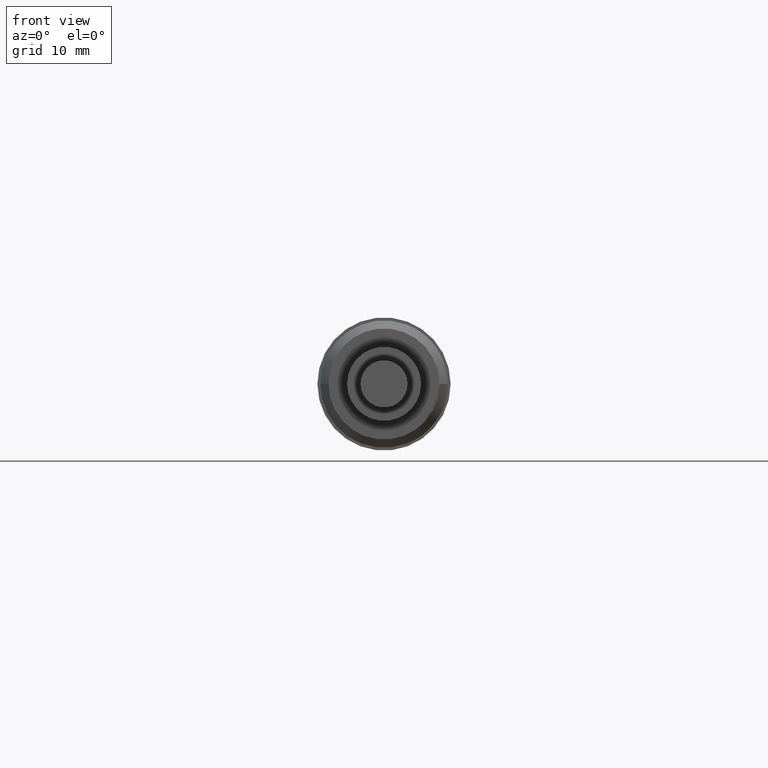
[diagram: clean part render]
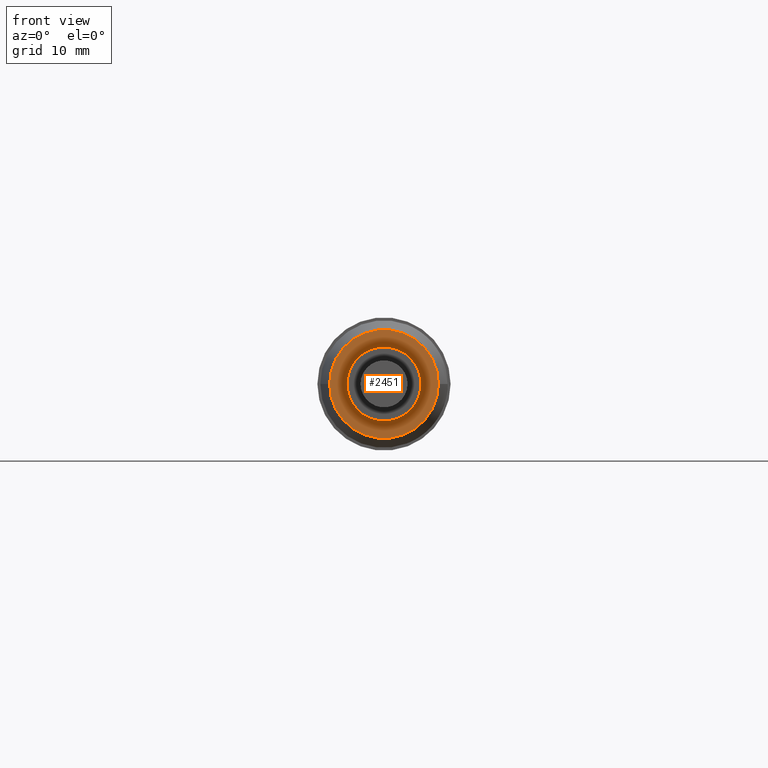
[diagram: same view with one face highlighted and labeled with its STEP entity id]
A machine part, front view. The second image highlights one B-rep face of the part: STEP entity #2451.
In plain terms, the highlighted planar face has unit normal (0, -1, 0).
Its self-contained STEP definition (entity closure, byte-faithful):
#81 = DIRECTION ( 'NONE',  ( -1.000000000000000000, 0.0000000000000000000, 0.0000000000000000000 ) ) ;
#456 = EDGE_LOOP ( 'NONE', ( #6496, #2493 ) ) ;
#460 = ORIENTED_EDGE ( 'NONE', *, *, #1917, .F. ) ;
#478 = CARTESIAN_POINT ( 'NONE',  ( 28.65296289245997100, 12.02618278390013300, 28.87709965591409000 ) ) ;
#716 = EDGE_CURVE ( 'NONE', #9553, #7789, #8278, .T. ) ;
#1089 = CARTESIAN_POINT ( 'NONE',  ( 33.65296289245996800, 12.02618278390013300, 28.87709965591409000 ) ) ;
#1917 = EDGE_CURVE ( 'NONE', #7064, #4153, #7146, .T. ) ;
#1987 = DIRECTION ( 'NONE',  ( -1.000000000000000000, 0.0000000000000000000, 0.0000000000000000000 ) ) ;
#2041 = CARTESIAN_POINT ( 'NONE',  ( 33.65296289245996800, 12.02618278390013300, 28.87709965591409000 ) ) ;
#2447 = CARTESIAN_POINT ( 'NONE',  ( 26.30296289245997000, 12.02618278390013300, 28.87709965591409000 ) ) ;
#2451 = ADVANCED_FACE ( 'NONE', ( #5908, #9496 ), #9085, .T. ) ;
#2493 = ORIENTED_EDGE ( 'NONE', *, *, #10739, .T. ) ;
#2936 = DIRECTION ( 'NONE',  ( -1.000000000000000000, 0.0000000000000000000, 0.0000000000000000000 ) ) ;
#3441 = AXIS2_PLACEMENT_3D ( 'NONE', #9241, #3944, #10137 ) ;
#3789 = CARTESIAN_POINT ( 'NONE',  ( 26.30296289245997000, 12.02618278390013300, 28.87709965591409000 ) ) ;
#3944 = DIRECTION ( 'NONE',  ( -1.058937486943297600E-016, 1.000000000000000000, -0.0000000000000000000 ) ) ;
#4153 = VERTEX_POINT ( 'NONE', #2447 ) ;
#4164 = AXIS2_PLACEMENT_3D ( 'NONE', #2041, #8229, #2936 ) ;
#4676 = DIRECTION ( 'NONE',  ( 1.000000000000000000, 1.058937486943297600E-016, 0.0000000000000000000 ) ) ;
#5360 = DIRECTION ( 'NONE',  ( -1.058937486943297600E-016, 1.000000000000000000, -0.0000000000000000000 ) ) ;
#5908 = FACE_BOUND ( 'NONE', #456, .T. ) ;
#6496 = ORIENTED_EDGE ( 'NONE', *, *, #716, .T. ) ;
#7044 = EDGE_LOOP ( 'NONE', ( #10253, #460 ) ) ;
#7059 = AXIS2_PLACEMENT_3D ( 'NONE', #7741, #5360, #81 ) ;
#7064 = VERTEX_POINT ( 'NONE', #7466 ) ;
#7146 = CIRCLE ( 'NONE', #7059, 7.349999999999998800 ) ;
#7282 = DIRECTION ( 'NONE',  ( -1.058937486943297600E-016, 1.000000000000000000, -0.0000000000000000000 ) ) ;
#7466 = CARTESIAN_POINT ( 'NONE',  ( 41.00296289245996900, 12.02618278390013300, 28.87709965591409000 ) ) ;
#7582 = CARTESIAN_POINT ( 'NONE',  ( 38.65296289245996800, 12.02618278390013300, 28.87709965591409000 ) ) ;
#7741 = CARTESIAN_POINT ( 'NONE',  ( 33.65296289245996800, 12.02618278390013300, 28.87709965591409000 ) ) ;
#7789 = VERTEX_POINT ( 'NONE', #7582 ) ;
#8229 = DIRECTION ( 'NONE',  ( -1.058937486943297600E-016, 1.000000000000000000, -0.0000000000000000000 ) ) ;
#8278 = CIRCLE ( 'NONE', #4164, 4.999999999999997300 ) ;
#8480 = CIRCLE ( 'NONE', #8638, 4.999999999999997300 ) ;
#8638 = AXIS2_PLACEMENT_3D ( 'NONE', #1089, #7282, #1987 ) ;
#8744 = AXIS2_PLACEMENT_3D ( 'NONE', #3789, #9980, #4676 ) ;
#8995 = CIRCLE ( 'NONE', #3441, 7.349999999999998800 ) ;
#9085 = PLANE ( 'NONE',  #8744 ) ;
#9241 = CARTESIAN_POINT ( 'NONE',  ( 33.65296289245996800, 12.02618278390013300, 28.87709965591409000 ) ) ;
#9496 = FACE_OUTER_BOUND ( 'NONE', #7044, .T. ) ;
#9553 = VERTEX_POINT ( 'NONE', #478 ) ;
#9980 = DIRECTION ( 'NONE',  ( 1.058937486943297600E-016, -1.000000000000000000, 0.0000000000000000000 ) ) ;
#10137 = DIRECTION ( 'NONE',  ( -1.000000000000000000, 0.0000000000000000000, 0.0000000000000000000 ) ) ;
#10253 = ORIENTED_EDGE ( 'NONE', *, *, #11355, .F. ) ;
#10739 = EDGE_CURVE ( 'NONE', #7789, #9553, #8480, .T. ) ;
#11355 = EDGE_CURVE ( 'NONE', #4153, #7064, #8995, .T. ) ;